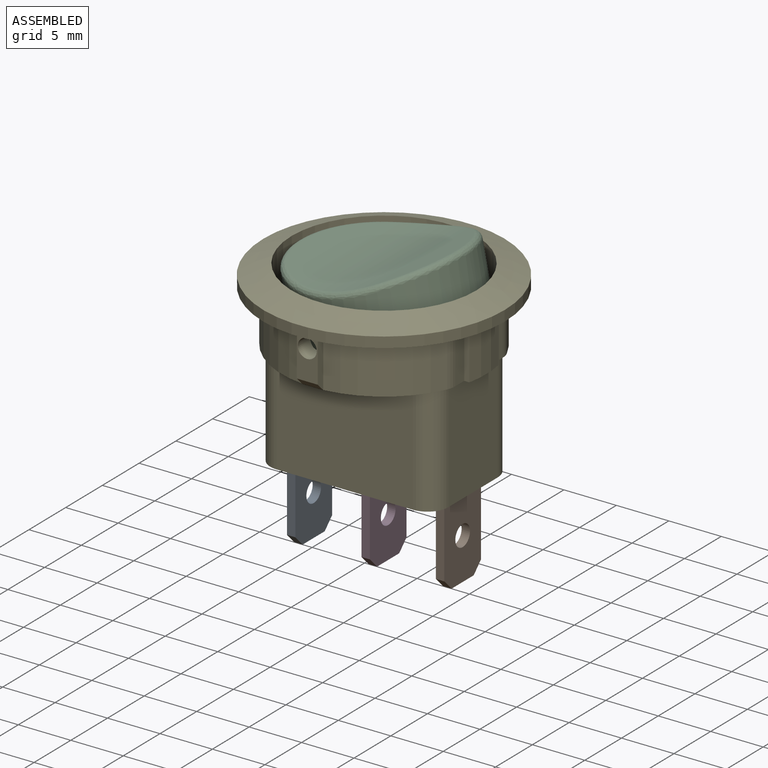
[diagram: assembled view]
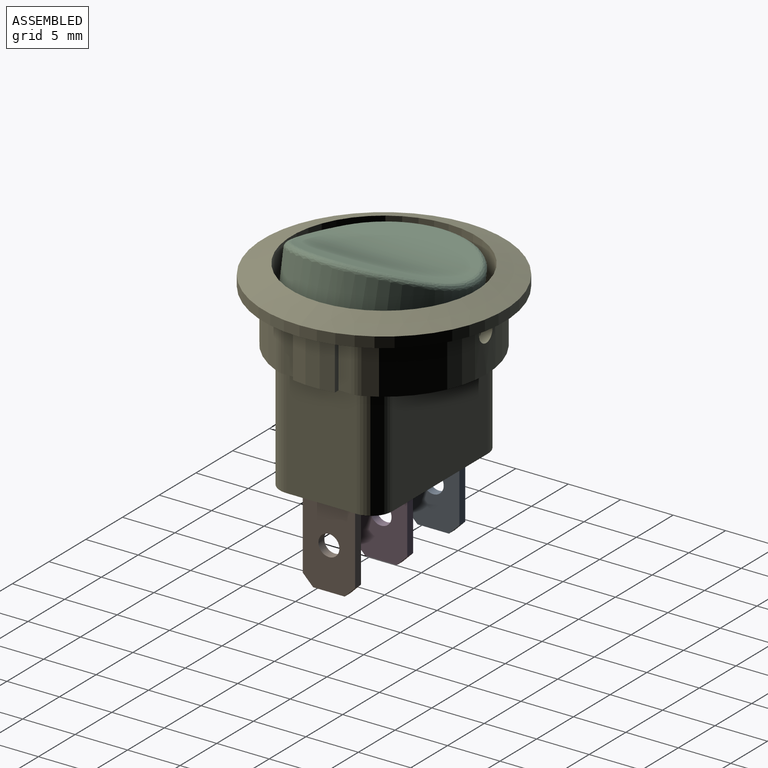
[diagram: assembled view, second angle]
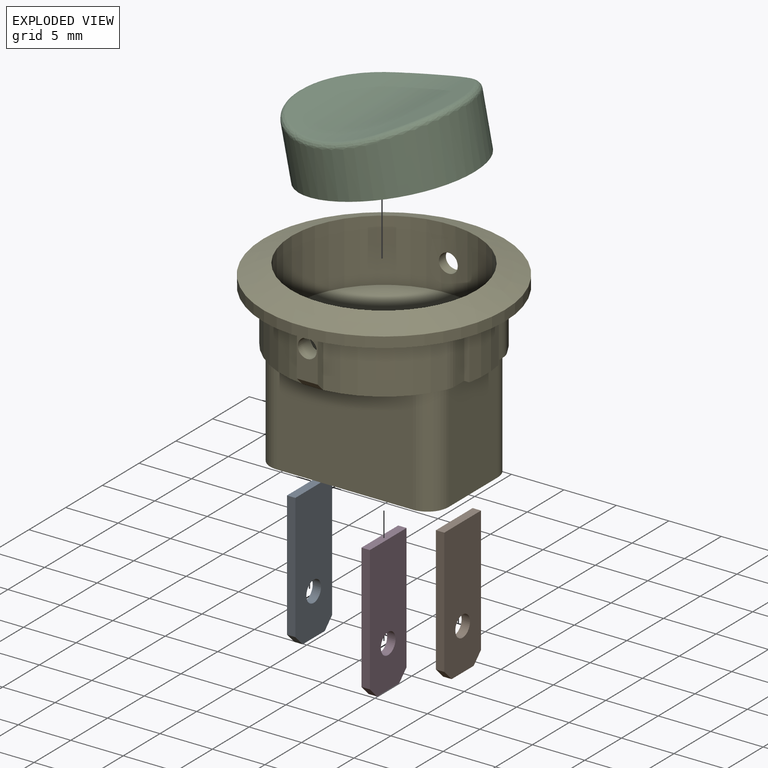
[diagram: exploded view]
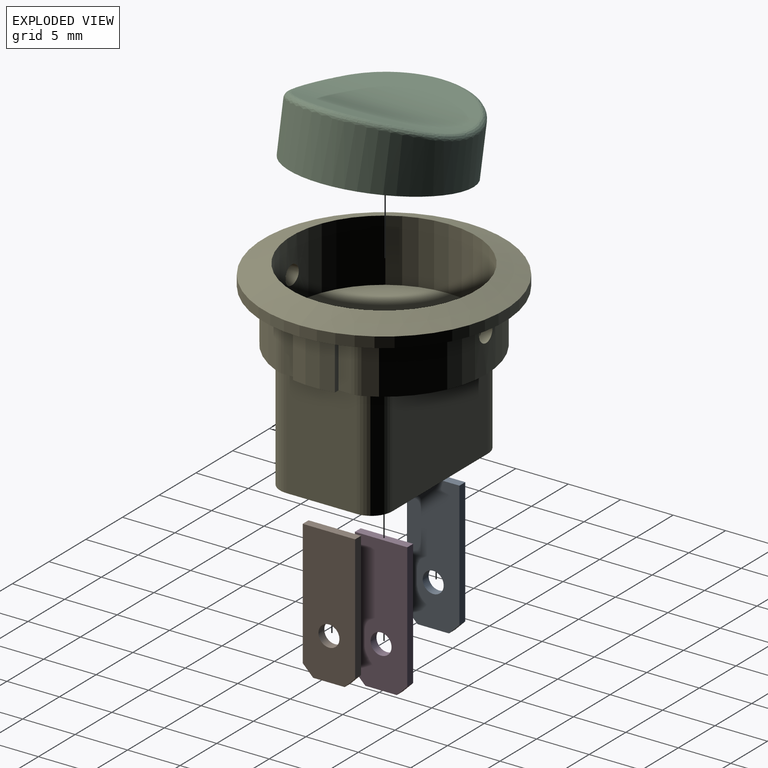
[diagram: exploded view, second angle]
ASSEMBLY  parts=5 mates=4
PART A: 9 faces, bbox 0.8x5x13 mm
  f0: plane 12x0.8mm, normal (0,1,0), area 9.6mm2, adj f1,f3,f4,f8
  f1: plane 13x5mm, normal (-1,0,0), area 60.9mm2, adj f0,f2,f4,f5,f6,f7,f8
  f2: plane 12x0.8mm, normal (0,-1,0), area 9.6mm2, adj f1,f3,f4,f7
  f3: plane 13x5mm, normal (1,0,0), area 60.9mm2, adj f0,f2,f4,f5,f6,f7,f8
  f4: plane 5x0.8mm, normal (0,0,1), area 4mm2, adj f0,f1,f2,f3
  f5: plane 3x0.8mm, normal (0,0,-1), area 2.4mm2, adj f1,f3,f7,f8
  f6: cylinder r=1mm len=2mm, axis (-1,0,0), area 5mm2, adj f1,f3
  f7: plane 1x1mm, normal (0,-0.71,-0.71), area 1.1mm2, adj f1,f2,f3,f5
  f8: plane 1x1mm, normal (0,0.71,-0.71), area 1.1mm2, adj f0,f1,f3,f5
PART B: same geometry as A
PART C: 9 faces, bbox 16x16x6 mm
  f0: cylinder r=8mm len=16mm, axis (0,0,-1), area 245.9mm2, adj f1,f5,f6,f7,f8
  f1: plane 16x16mm, normal (0,0,-1), area 201.1mm2, adj f0
  f2: plane 12.66x3.48mm, normal (0.2,0,0.98), area 31.7mm2, adj f4,f5
  f3: plane 12.66x3.48mm, normal (-0.2,0,0.98), area 31.7mm2, adj f4,f8
  f4: cylinder r=20mm len=15mm, axis (0,1,0), area 112.5mm2, adj f2,f3,f6,f7
  f5: bspline ~14.3x4.63mm, area 13.8mm2, adj f0,f2,f6,f7
  f6: bspline ~11.42x2.74mm, area 7.1mm2, adj f0,f4,f5,f8
  f7: bspline ~11.42x2.74mm, area 7.1mm2, adj f0,f4,f5,f8
  f8: bspline ~14.3x4.63mm, area 13.8mm2, adj f0,f3,f6,f7
PART D: same geometry as A
PART E: 53 faces, bbox 23x23x17.5 mm
  f0: plane 23x23mm, normal (0,0,-1), area 117.2mm2, adj f1,f2,f3,f4,f5,f6,f7,f8
  f1: cylinder r=11.5mm len=23mm, axis (0,0,-1), area 72.3mm2, adj f0,f45
  f2: cylinder r=9.75mm len=5mm, axis (0,0,1), area 20.1mm2, adj f0,f3,f17,f18
  f3: plane 5x0.49mm, normal (0,1,0), area 2.5mm2, adj f0,f2,f4,f18
  f4: plane 5x1.22mm, normal (-1,0,0), area 6.1mm2, adj f0,f3,f18,f47
  f5: cylinder r=9.75mm len=17.74mm, axis (0,0,1), area 108.8mm2, adj f0,f18,f47,f48,f52
  f6: plane 5x1.22mm, normal (1,0,0), area 6.1mm2, adj f0,f7,f18,f48
  f7: plane 5x0.49mm, normal (0,1,0), area 2.5mm2, adj f0,f6,f8,f18
  f8: cylinder r=9.75mm len=5mm, axis (0,0,1), area 20.1mm2, adj f0,f7,f9,f18
  f9: plane 5x0.49mm, normal (0,-1,0), area 2.5mm2, adj f0,f8,f10,f18
  f10: plane 5x1.22mm, normal (1,0,0), area 6.1mm2, adj f0,f9,f18,f49
  f11: cylinder r=9.75mm len=7.87mm, axis (0,0,1), area 50.7mm2, adj f0,f12,f18,f49
  f12: plane 5x0.75mm, normal (1,0,0), area 3.5mm2, adj f0,f11,f13,f50
  f13: plane 4.25x2mm, normal (0,-1,0), area 6mm2, adj f0,f12,f14,f50,f51
  f14: plane 5x0.75mm, normal (-1,0,0), area 3.5mm2, adj f0,f13,f15,f50
  f15: cylinder r=9.75mm len=7.87mm, axis (0,0,1), area 50.7mm2, adj f0,f14,f18,f46
  f16: plane 5x1.22mm, normal (-1,0,0), area 6.1mm2, adj f0,f17,f18,f46
  f17: plane 5x0.49mm, normal (0,-1,0), area 2.5mm2, adj f0,f2,f16,f18
  f18: plane 19.5x19.45mm, normal (0,0,-1), area 118.3mm2, adj f2,f3,f4,f5,f6,f7,f8,f9
  f19: cylinder r=2mm len=10.5mm, axis (0,0,1), area 33mm2, adj f18,f20,f26,f27
  f20: plane 13x10.5mm, normal (0,1,0), area 136.5mm2, adj f18,f19,f21,f27
  f21: cylinder r=2mm len=10.5mm, axis (0,0,1), area 33mm2, adj f18,f20,f22,f27
  f22: plane 10.5x6.7mm, normal (1,0,0), area 70.3mm2, adj f18,f21,f23,f27
  f23: cylinder r=2mm len=10.5mm, axis (0,0,1), area 33mm2, adj f18,f22,f24,f27
  f24: plane 13x10.5mm, normal (0,-1,0), area 136.5mm2, adj f18,f23,f25,f27
  f25: cylinder r=2mm len=10.5mm, axis (0,0,1), area 33mm2, adj f18,f24,f26,f27
  f26: plane 10.5x6.7mm, normal (-1,0,0), area 70.3mm2, adj f18,f19,f25,f27
  f27: plane 17x10.7mm, normal (0,0,-1), area 166.5mm2, adj f19,f20,f21,f22,f23,f24,f25,f26
  f28: plane 5x5mm, normal (1,0,0), area 25mm2, adj f27,f29,f31,f32
  f29: plane 5x0.8mm, normal (0,-1,0), area 4mm2, adj f27,f28,f30,f32
  f30: plane 5x5mm, normal (-1,0,0), area 25mm2, adj f27,f29,f31,f32
  f31: plane 5x0.8mm, normal (0,1,0), area 4mm2, adj f27,f28,f30,f32
  f32: plane 5x0.8mm, normal (0,0,-1), area 4mm2, adj f28,f29,f30,f31
  f33: plane 5x5mm, normal (1,0,0), area 25mm2, adj f27,f34,f36,f37
  f34: plane 5x0.8mm, normal (0,-1,0), area 4mm2, adj f27,f33,f35,f37
  f35: plane 5x5mm, normal (-1,0,0), area 25mm2, adj f27,f34,f36,f37
  f36: plane 5x0.8mm, normal (0,1,0), area 4mm2, adj f27,f33,f35,f37
  f37: plane 5x0.8mm, normal (0,0,-1), area 4mm2, adj f33,f34,f35,f36
  f38: plane 5x5mm, normal (1,0,0), area 25mm2, adj f27,f39,f41,f42
  f39: plane 5x0.8mm, normal (0,-1,0), area 4mm2, adj f27,f38,f40,f42
  f40: plane 5x5mm, normal (-1,0,0), area 25mm2, adj f27,f39,f41,f42
  f41: plane 5x0.8mm, normal (0,1,0), area 4mm2, adj f27,f38,f40,f42
  f42: plane 5x0.8mm, normal (0,0,-1), area 4mm2, adj f38,f39,f40,f41
  f43: cylinder r=8.8mm len=17.6mm, axis (0,0,1), area 324.7mm2, adj f44,f45,f51,f52
  f44: plane 17.6x17.6mm, normal (0,0,1), area 243.3mm2, adj f43
  f45: cone r=8.7mm half-angle=70.3deg, axis (0,0,-1), area 182.8mm2, adj f1,f43
  f46: cylinder r=2mm len=5mm, axis (0,0,1), area 4.3mm2, adj f0,f15,f16,f18
  f47: cylinder r=2mm len=5mm, axis (0,0,1), area 4.3mm2, adj f0,f4,f5,f18
  f48: cylinder r=2mm len=5mm, axis (0,0,1), area 4.3mm2, adj f0,f5,f6,f18
  f49: cylinder r=2mm len=5mm, axis (0,0,1), area 4.3mm2, adj f0,f10,f11,f18
  f50: plane 2x0.75mm, normal (0,-0.71,-0.71), area 2.1mm2, adj f12,f13,f14,f18
  f51: cylinder r=0.9mm len=1.8mm, axis (0,-1,0), area 9.5mm2, adj f13,f43
  f52: cylinder r=0.9mm len=1.8mm, axis (0,-1,0), area 5.4mm2, adj f5,f43
PLACE A t=(-27.13,8.2,-7.19)mm
PLACE B t=(-12.93,8.2,-7.19)mm
PLACE C rot(axis=(0,-1,0),11.3deg) t=(-18.87,10.7,13.96)mm
PLACE D t=(-20.03,8.2,-7.19)mm
PLACE E t=(-19.63,10.7,16.31)mm
MATE fastened B.f4 <-> E.f42  axis (0,0,1) through (-12.93,10.7,5.81)mm
MATE fastened A.f4 <-> E.f37  axis (0,0,1) through (-27.13,10.7,5.81)mm
MATE fastened D.f4 <-> E.f32  axis (0,0,1) through (-20.03,10.7,5.81)mm
MATE fastened C.f2 <-> E.f5  axis (0,0,1) through (-19.63,10.7,18.27)mm
